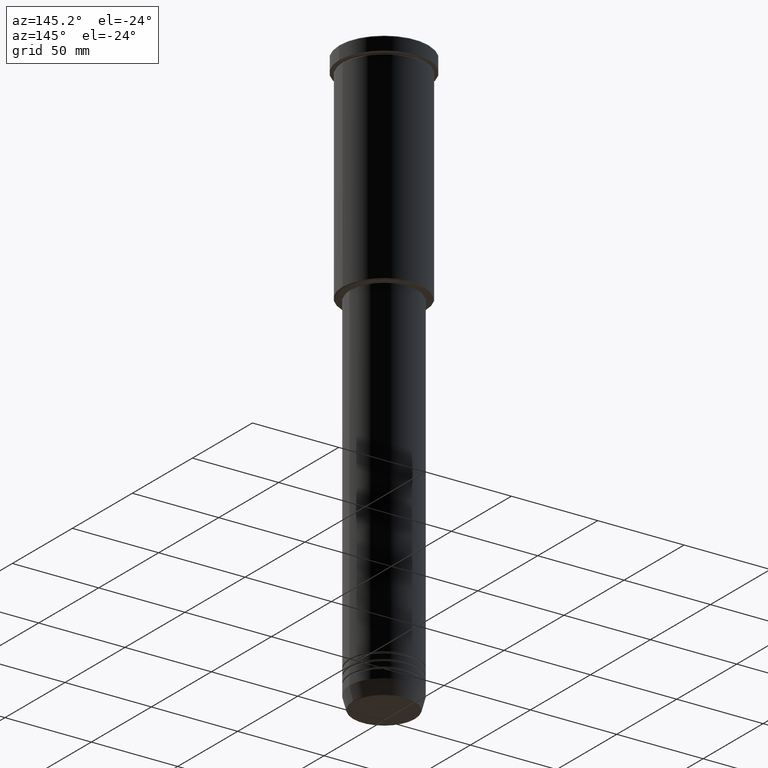
[diagram: clean part render]
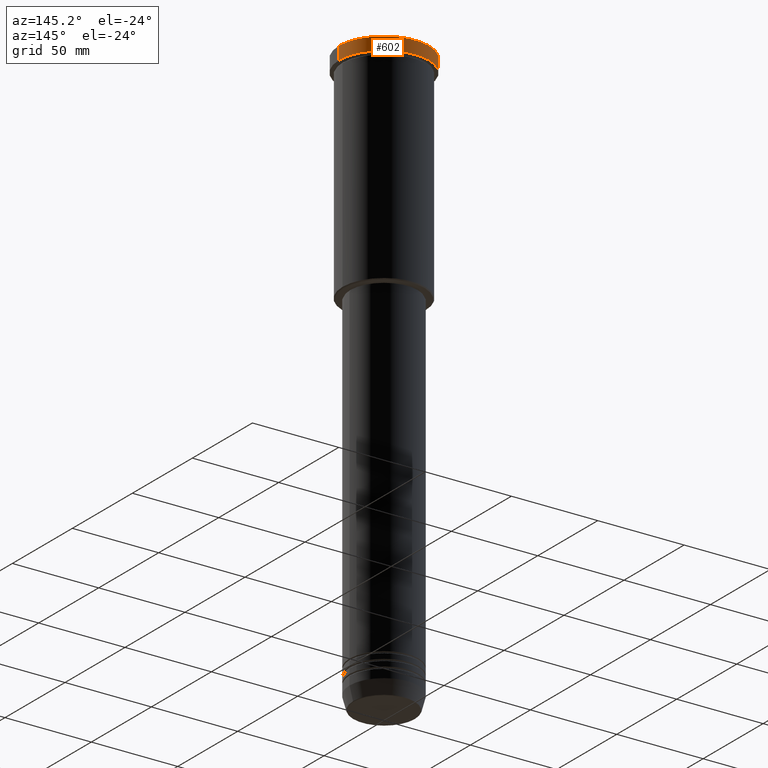
[diagram: same view with one face highlighted and labeled with its STEP entity id]
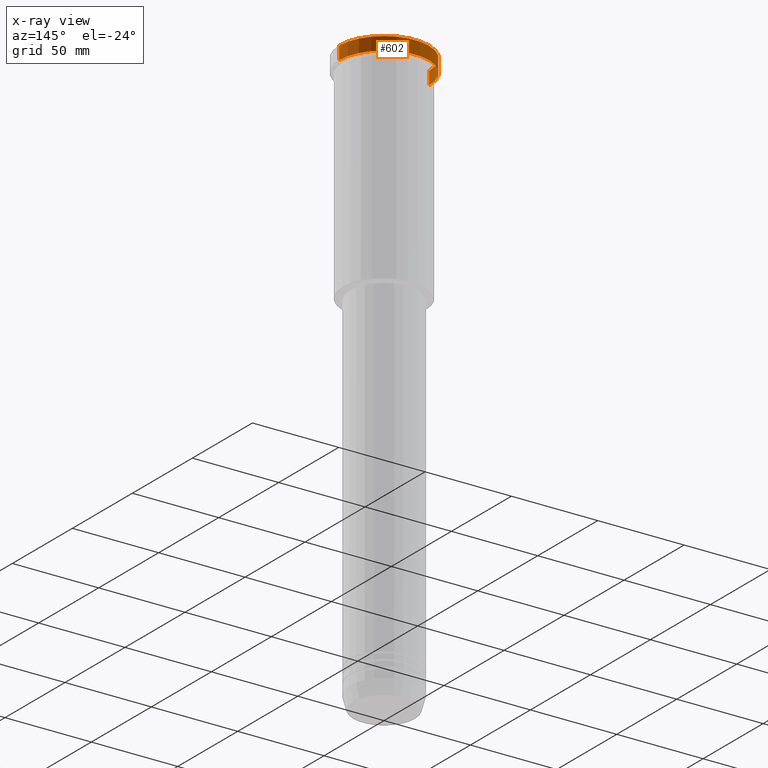
[diagram: x-ray of the same camera — body ghosted, the highlighted face saturated]
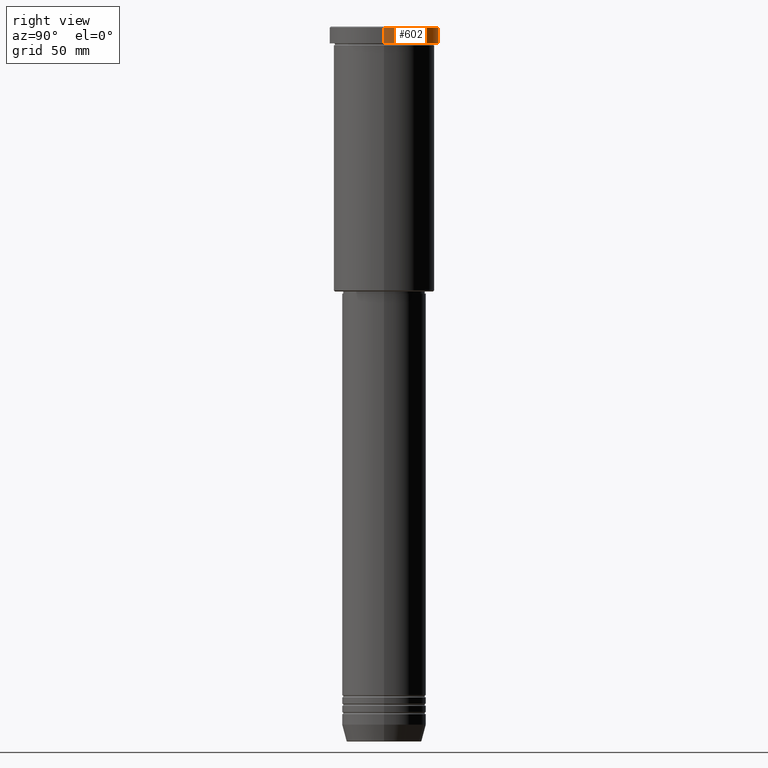
[diagram: same view with one face highlighted and labeled with its STEP entity id]
A machine part, auxiliary view. The second image highlights one B-rep face of the part: STEP entity #602.
The next image is the same camera in x-ray: the body ghosted, the highlighted face saturated — about 0% of this face is hidden behind the body in this view.
A second angle (right view) of the same face is appended — the face is thin or edge-on in the first view.
In plain terms, the highlighted cylindrical surface (partial cylindrical patch) has radius 26 mm, axis along (-0, -0, 1).
Its self-contained STEP definition (entity closure, byte-faithful):
#42 = EDGE_CURVE ( 'NONE', #324, #760, #804, .T. ) ;
#87 = AXIS2_PLACEMENT_3D ( 'NONE', #360, #1166, #342 ) ;
#153 = EDGE_LOOP ( 'NONE', ( #950, #487, #494, #988 ) ) ;
#171 = DIRECTION ( 'NONE',  ( -0.000000000000000000, -0.000000000000000000, 1.000000000000000000 ) ) ;
#218 = EDGE_CURVE ( 'NONE', #752, #842, #396, .T. ) ;
#235 = CARTESIAN_POINT ( 'NONE',  ( -26.00000000000000000, 3.184081677783118191E-15, -0.4999999999999692468 ) ) ;
#252 = CIRCLE ( 'NONE', #411, 26.00000000000000000 ) ;
#324 = VERTEX_POINT ( 'NONE', #1142 ) ;
#342 = DIRECTION ( 'NONE',  ( 1.000000000000000000, 0.000000000000000000, 0.000000000000000000 ) ) ;
#360 = CARTESIAN_POINT ( 'NONE',  ( 0.000000000000000000, 0.000000000000000000, -7.999999999999992895 ) ) ;
#396 = LINE ( 'NONE', #1109, #849 ) ;
#411 = AXIS2_PLACEMENT_3D ( 'NONE', #1087, #544, #636 ) ;
#431 = CARTESIAN_POINT ( 'NONE',  ( 26.00000000000000000, 0.000000000000000000, -7.999999999999992895 ) ) ;
#461 = VECTOR ( 'NONE', #171, 1000.000000000000000 ) ;
#468 = DIRECTION ( 'NONE',  ( -0.000000000000000000, -0.000000000000000000, 1.000000000000000000 ) ) ;
#487 = ORIENTED_EDGE ( 'NONE', *, *, #42, .T. ) ;
#494 = ORIENTED_EDGE ( 'NONE', *, *, #961, .T. ) ;
#544 = DIRECTION ( 'NONE',  ( 0.000000000000000000, 0.000000000000000000, -1.000000000000000000 ) ) ;
#602 = ADVANCED_FACE ( 'NONE', ( #646 ), #811, .T. ) ;
#636 = DIRECTION ( 'NONE',  ( 1.000000000000000000, 0.000000000000000000, 0.000000000000000000 ) ) ;
#646 = FACE_OUTER_BOUND ( 'NONE', #153, .T. ) ;
#678 = EDGE_CURVE ( 'NONE', #752, #324, #931, .T. ) ;
#714 = CARTESIAN_POINT ( 'NONE',  ( 0.000000000000000000, 0.000000000000000000, 0.000000000000000000 ) ) ;
#752 = VERTEX_POINT ( 'NONE', #431 ) ;
#760 = VERTEX_POINT ( 'NONE', #235 ) ;
#804 = LINE ( 'NONE', #909, #461 ) ;
#811 = CYLINDRICAL_SURFACE ( 'NONE', #1101, 26.00000000000000000 ) ;
#842 = VERTEX_POINT ( 'NONE', #970 ) ;
#849 = VECTOR ( 'NONE', #468, 1000.000000000000000 ) ;
#909 = CARTESIAN_POINT ( 'NONE',  ( -26.00000000000000000, 3.184081677783118191E-15, 0.000000000000000000 ) ) ;
#931 = CIRCLE ( 'NONE', #87, 26.00000000000000000 ) ;
#950 = ORIENTED_EDGE ( 'NONE', *, *, #678, .T. ) ;
#961 = EDGE_CURVE ( 'NONE', #760, #842, #252, .T. ) ;
#970 = CARTESIAN_POINT ( 'NONE',  ( 26.00000000000000000, 0.000000000000000000, -0.4999999999999692468 ) ) ;
#988 = ORIENTED_EDGE ( 'NONE', *, *, #218, .F. ) ;
#1087 = CARTESIAN_POINT ( 'NONE',  ( 0.000000000000000000, 0.000000000000000000, -0.4999999999999692468 ) ) ;
#1094 = DIRECTION ( 'NONE',  ( 1.000000000000000000, 0.000000000000000000, 0.000000000000000000 ) ) ;
#1101 = AXIS2_PLACEMENT_3D ( 'NONE', #714, #1178, #1094 ) ;
#1109 = CARTESIAN_POINT ( 'NONE',  ( 26.00000000000000000, 0.000000000000000000, 0.000000000000000000 ) ) ;
#1142 = CARTESIAN_POINT ( 'NONE',  ( -26.00000000000000000, 3.184081677783118191E-15, -7.999999999999992895 ) ) ;
#1166 = DIRECTION ( 'NONE',  ( -0.000000000000000000, -0.000000000000000000, 1.000000000000000000 ) ) ;
#1178 = DIRECTION ( 'NONE',  ( -0.000000000000000000, -0.000000000000000000, 1.000000000000000000 ) ) ;